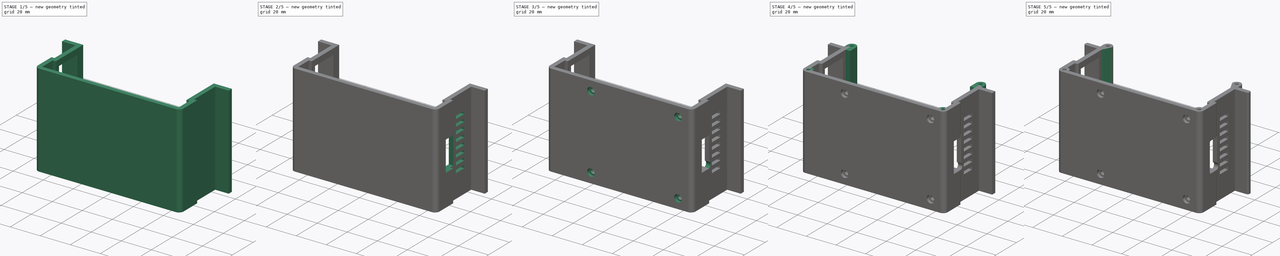
[diagram: build sequence overview — one tinted view per stage of 5, left to right]
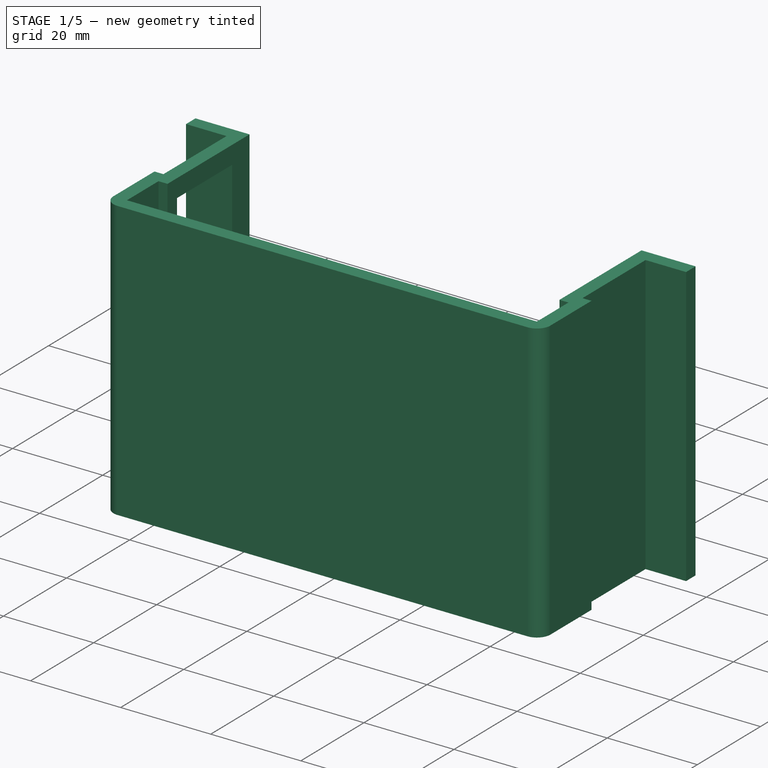
[diagram: stage 1 of 5 — iso view after this stage's code; geometry added in this stage tinted green]
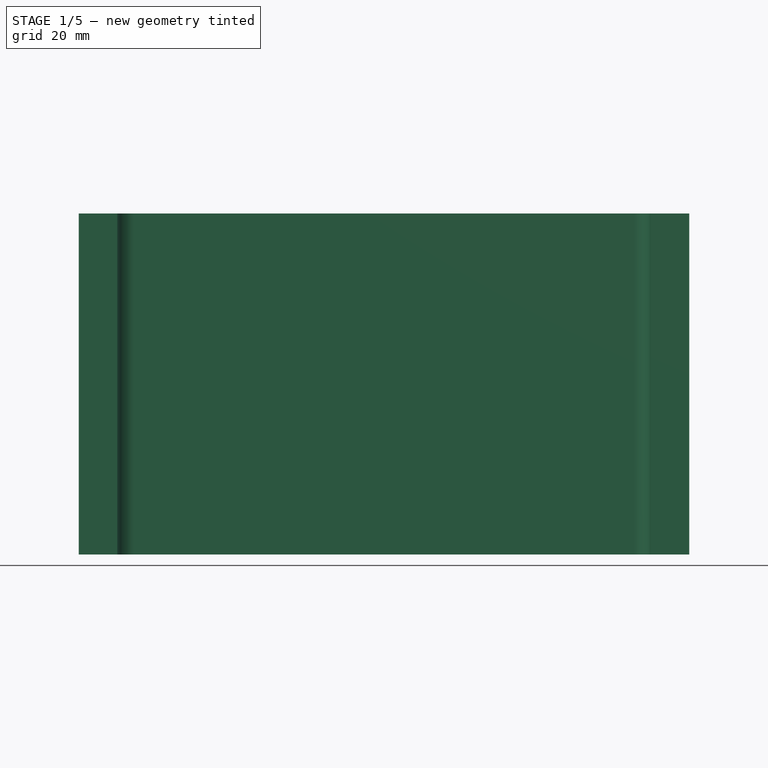
[diagram: stage 1 of 5 — front view after this stage's code; geometry added in this stage tinted green]
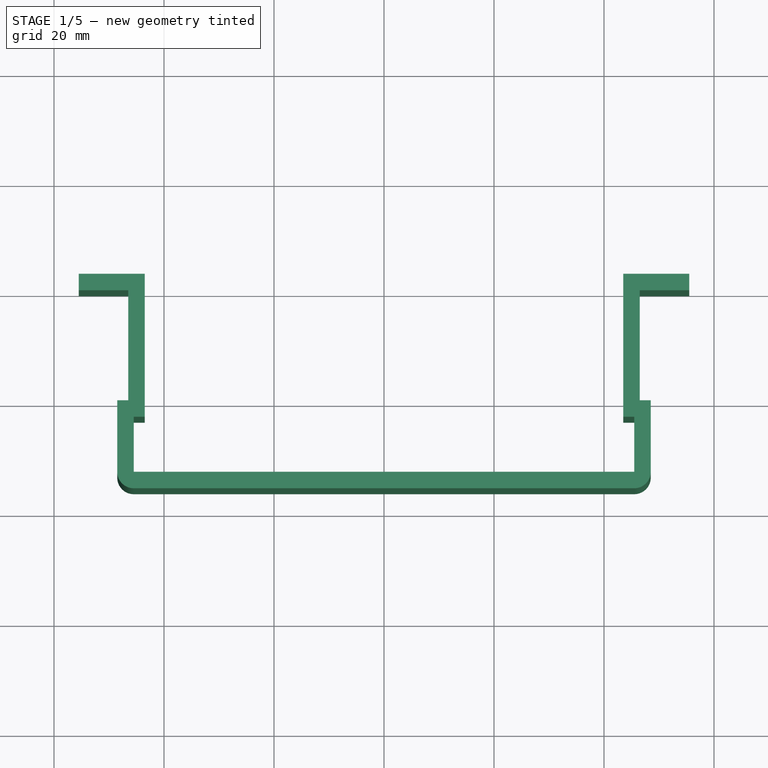
[diagram: stage 1 of 5 — top view after this stage's code; geometry added in this stage tinted green]
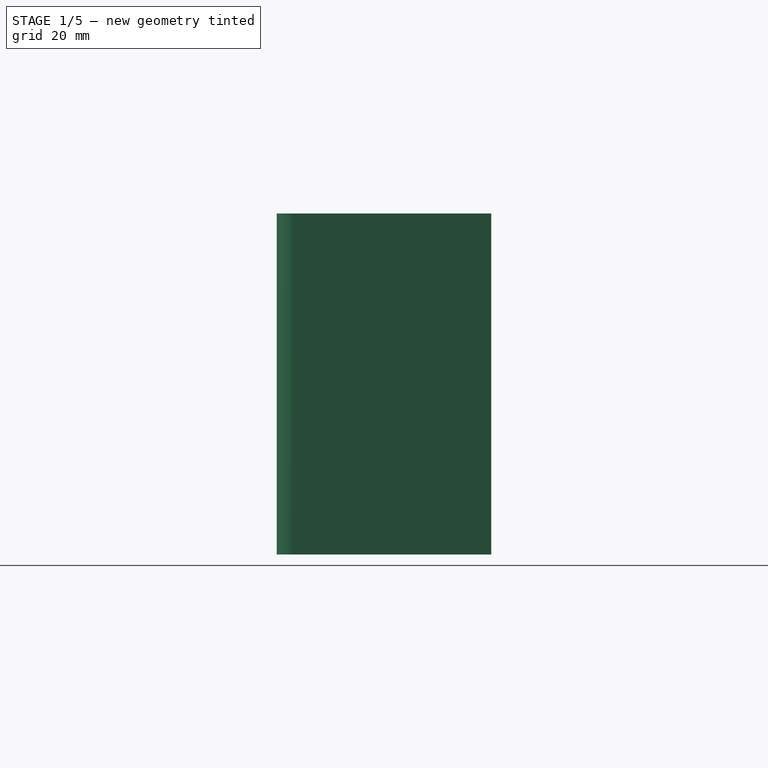
[diagram: stage 1 of 5 — right view after this stage's code; geometry added in this stage tinted green]
FCSTD DOCUMENT  (FreeCAD 1.0R39319 (Git))
Label: Pi5_Bagpack
License: All rights reserved
LicenseURL: https://en.wikipedia.org/wiki/All_rights_reserved
objects: Sketcher::SketchObject×11, PartDesign::Pocket×7, PartDesign::Fillet×6, PartDesign::Pad×3, PartDesign::Mirrored×1, PartDesign::LinearPattern×1, PartDesign::Hole×1, PartDesign::Body×1, App::Part×1
note: 78 computed .brp shape members not serialized (recipe doc carries the construction recipe); baked Part::Feature solids carry a one-line shape summary decoded from their .brp

FEATURE [Sketcher::SketchObject] Sketch
  ArcFitTolerance = 1e-06
  AttachmentSupport = -> [XY_Plane001]
  FullyConstrained = true
  MakeInternals = false
  MapMode = 5
  sketch-geometry (12):
    g0: LineSegment StartX=0 StartY=-36 StartZ=0 EndX=0 EndY=-33 EndZ=0
    g1: LineSegment StartX=43.5 StartY=3 StartZ=0 EndX=55.5 EndY=3 EndZ=0
    g2: LineSegment StartX=55.5 StartY=3 StartZ=0 EndX=55.5 EndY=0 EndZ=0
    g3: LineSegment StartX=55.5 StartY=0 StartZ=0 EndX=46.5 EndY=0 EndZ=0
    g4: LineSegment StartX=48.5 StartY=-36 StartZ=0 EndX=0 EndY=-36 EndZ=0
    g5: LineSegment StartX=43.5 StartY=3 StartZ=0 EndX=43.5 EndY=-23 EndZ=0
    g6: LineSegment StartX=43.5 StartY=-23 StartZ=0 EndX=45.5 EndY=-23 EndZ=0
    g7: LineSegment StartX=0 StartY=-33 StartZ=0 EndX=45.5 EndY=-33 EndZ=0
    g8: LineSegment StartX=45.5 StartY=-33 StartZ=0 EndX=45.5 EndY=-23 EndZ=0
    g9: LineSegment StartX=48.5 StartY=-36 StartZ=0 EndX=48.5 EndY=-20 EndZ=0
    g10: LineSegment StartX=48.5 StartY=-20 StartZ=0 EndX=46.5 EndY=-20 EndZ=0
    g11: LineSegment StartX=46.5 StartY=-20 StartZ=0 EndX=46.5 EndY=0 EndZ=0
  constraints (36):
    c: PointOnObject(g0,g-2)
    c: PointOnObject(g0,g-2)
    c: Horizontal(g1)
    c: Coincident(g1,g2)
    c: PointOnObject(g2,g-1)
    c: Coincident(g2,g3)
    c: PointOnObject(g3,g-1)
    c: Coincident(g4,g0)
    c: Horizontal(g4)
    c: Distance(g3,g1) = 3
    c: Vertical(g2)
    c: Distance(g2,g-2) = 55.5
    c: Coincident(g1,g5)
    c: Vertical(g5)
    c: Coincident(g5,g6)
    c: Horizontal(g6)
    c: Distance(g-2,g5) = 43.5
    c: Coincident(g0,g7)
    c: Horizontal(g7)
    c: Coincident(g7,g8)
    c: Coincident(g8,g6)
    c: Coincident(g4,g9)
    c: Vertical(g9)
    c: Coincident(g9,g10)
    c: Coincident(g10,g11)
    c: Coincident(g11,g3)
    c: Vertical(g8)
    c: Horizontal(g10)
    c: Vertical(g11)
    c: Distance(g4,g7) = 3
    c: Distance(g9,g8) = 3
    c: Distance(g11,g5) = 3
    c: Distance(g10,g6) = 3
    c: Distance(g6,g7) = 10
    c: Distance(g8,g-2) = 45.5
    c: Distance(g7,g3) = 33
FEATURE [PartDesign::Pad] Pad
  Direction = (0,0,1)
  Length = 62
  Length2 = 10
  Profile = -> Sketch
  ReferenceAxis = -> Sketch [N_Axis]
  Refine = true
  Suppressed = false
  Type = 0
FEATURE [PartDesign::Fillet] Fillet
  Base = -> Pad [Edge1]
  BaseFeature = -> Pad
  Radius = 3
  Refine = true
  SupportTransform = false
  Suppressed = false
  UseAllEdges = false
FEATURE [PartDesign::Mirrored] Mirrored
  BaseFeature = -> Fillet
  MirrorPlane = -> YZ_Plane001
  Refine = true
  Suppressed = false
  TransformMode = 1
FEATURE [Sketcher::SketchObject] Sketch001
  ArcFitTolerance = 1e-06
  AttachmentSupport = -> [Mirrored]
  ExternalGeometry = -> [Mirrored]
  FullyConstrained = true
  MakeInternals = false
  MapMode = 5
  Placement = pos=(-46.5,1.03e-14,-1.03e-14) rot=(0.57735,-0.57735,-0.57735;2.0944rad)
  sketch-geometry (15):
    g0: LineSegment StartX=2.5 StartY=24.1 StartZ=0 EndX=20 EndY=24.1 EndZ=0
    g1: LineSegment StartX=20 StartY=24.1 StartZ=0 EndX=20 EndY=40.1 EndZ=0
    g2: LineSegment StartX=20 StartY=40.1 StartZ=0 EndX=2.5 EndY=40.1 EndZ=0
    g3: LineSegment StartX=2.5 StartY=42 StartZ=0 EndX=20 EndY=42 EndZ=0
    g4: LineSegment StartX=20 StartY=42 StartZ=0 EndX=20 EndY=58 EndZ=0
    g5: LineSegment StartX=20 StartY=58 StartZ=0 EndX=2.5 EndY=58 EndZ=0
    g6: LineSegment StartX=5 StartY=21.95 StartZ=0 EndX=5 EndY=4.45 EndZ=0
    g7: LineSegment StartX=5 StartY=4.45 StartZ=0 EndX=20 EndY=4.45 EndZ=0
    g8: LineSegment StartX=20 StartY=4.45 StartZ=0 EndX=20 EndY=21.95 EndZ=0
    g9: LineSegment StartX=20 StartY=21.95 StartZ=0 EndX=5 EndY=21.95 EndZ=0
    g10: LineSegment [constr] StartX=20 StartY=50 StartZ=0 EndX=2.5 EndY=50 EndZ=0
    g11: LineSegment [constr] StartX=20 StartY=32.1 StartZ=0 EndX=2.5 EndY=32.1 EndZ=0
    g12: LineSegment [constr] StartX=20 StartY=13.2 StartZ=0 EndX=5 EndY=13.2 EndZ=0
    g13: LineSegment StartX=2.5 StartY=58 StartZ=0 EndX=2.5 EndY=42 EndZ=0
    g14: LineSegment StartX=2.5 StartY=40.1 StartZ=0 EndX=2.5 EndY=24.1 EndZ=0
  constraints (42):
    c: Coincident(g0,g1)
    c: Coincident(g1,g2)
    c: Horizontal(g0)
    c: Horizontal(g2)
    c: Vertical(g1)
    c: Coincident(g3,g4)
    c: Coincident(g4,g5)
    c: Horizontal(g3)
    c: Horizontal(g5)
    c: Vertical(g4)
    c: Coincident(g6,g7)
    c: Coincident(g7,g8)
    c: Coincident(g8,g9)
    c: Coincident(g9,g6)
    c: Vertical(g6)
    c: Vertical(g8)
    c: Horizontal(g7)
    c: Horizontal(g9)
    c: PointOnObject(g4,g-4)
    c: PointOnObject(g1,g-4)
    c: PointOnObject(g8,g-4)
    c: Symmetric(g4,g4,g10)
    c: Symmetric(g5,g3,g10)
    c: Symmetric(g1,g1,g11)
    c: Symmetric(g2,g0,g11)
    c: Symmetric(g8,g8,g12)
    c: Symmetric(g6,g6,g12)
    c: Distance(g-1,g10) = 50
    c: Distance(g-1,g11) = 32.1
    c: Distance(g-1,g12) = 13.2
    c: Distance(g9,g7) = 17.5
    c: Distance(g0,g2) = 16
    c: Distance(g5,g3) = 16
    c: Distance(g8,g6) = 15
    c: Coincident(g13,g5)
    c: Coincident(g13,g3)
    c: Vertical(g13)
    c: Coincident(g14,g2)
    c: Coincident(g14,g0)
    c: Vertical(g14)
    c: Distance(g4,g13) = 17.5
    c: Distance(g1,g14) = 17.5
FEATURE [Sketcher::SketchObject] Sketch002
  ArcFitTolerance = 1e-06
  AttachmentSupport = -> [Mirrored]
  ExternalGeometry = -> [Mirrored]
  FullyConstrained = true
  MakeInternals = false
  MapMode = 5
  Placement = pos=(46.5,0,0) rot=(0.57735,0.57735,0.57735;2.0944rad)
  sketch-geometry (6):
    g0: LineSegment StartX=-27 StartY=41 StartZ=0 EndX=-27 EndY=21 EndZ=0
    g1: LineSegment StartX=-27 StartY=21 StartZ=0 EndX=-17 EndY=21 EndZ=0
    g2: LineSegment StartX=-17 StartY=21 StartZ=0 EndX=-17 EndY=41 EndZ=0
    g3: LineSegment StartX=-17 StartY=41 StartZ=0 EndX=-27 EndY=41 EndZ=0
    g4: LineSegment [constr] StartX=-17 StartY=31 StartZ=0 EndX=-27 EndY=31 EndZ=0
    g5: LineSegment [constr] StartX=-22 StartY=41 StartZ=0 EndX=-22 EndY=21 EndZ=0
  constraints (15):
    c: Coincident(g0,g1)
    c: Coincident(g1,g2)
    c: Coincident(g2,g3)
    c: Coincident(g3,g0)
    c: Vertical(g0)
    c: Vertical(g2)
    c: Horizontal(g1)
    c: Distance(g1,g3) = 20
    c: Distance(g2,g0) = 10
    c: Symmetric(g2,g2,g4)
    c: Symmetric(g0,g0,g4)
    c: Symmetric(g-3,g-3,g4)
    c: Symmetric(g3,g3,g5)
    c: Symmetric(g1,g1,g5)
    c: Distance(g5,g-3) = 11
FEATURE [PartDesign::Pocket] Pocket
  BaseFeature = -> Mirrored
  Direction = (1,0,0)
  Length = 0
  Length2 = 5
  Profile = -> Sketch001
  ReferenceAxis = -> Sketch001 [N_Axis]
  Refine = true
  Suppressed = false
  Type = 3
  UpToFace = -> YZ_Plane001
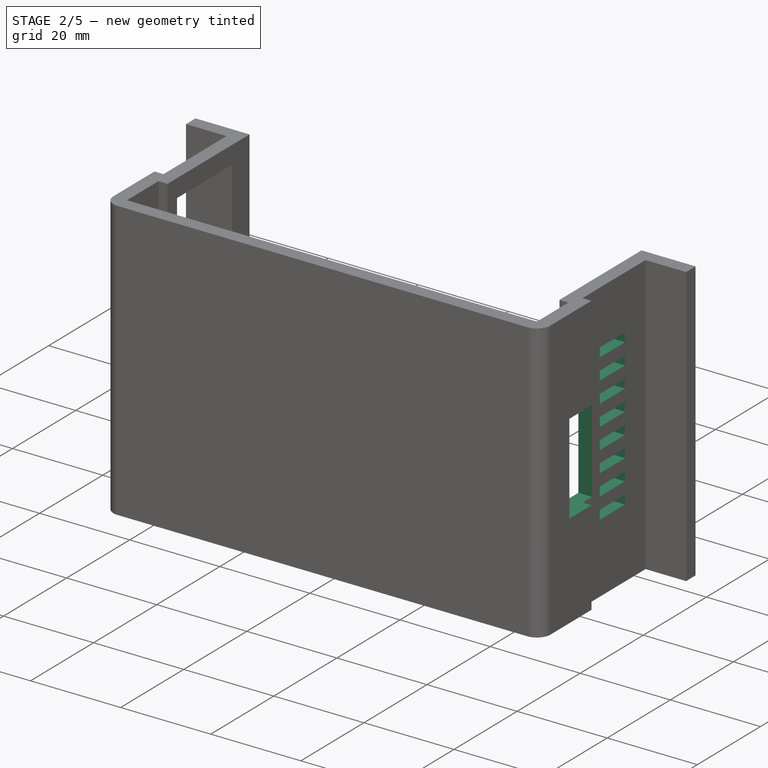
[diagram: stage 2 of 5 — iso view after this stage's code; geometry added in this stage tinted green]
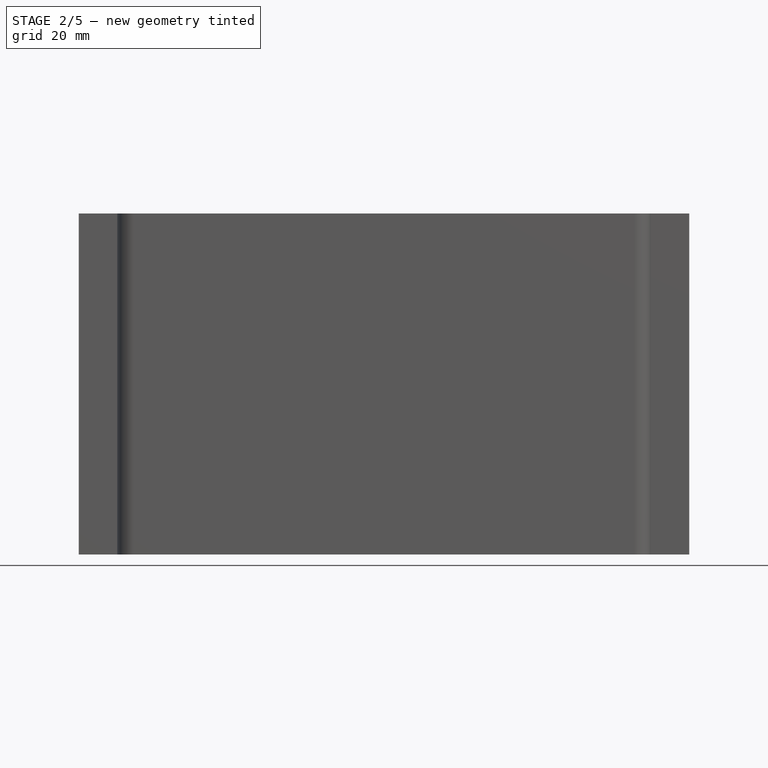
[diagram: stage 2 of 5 — front view after this stage's code; geometry added in this stage tinted green]
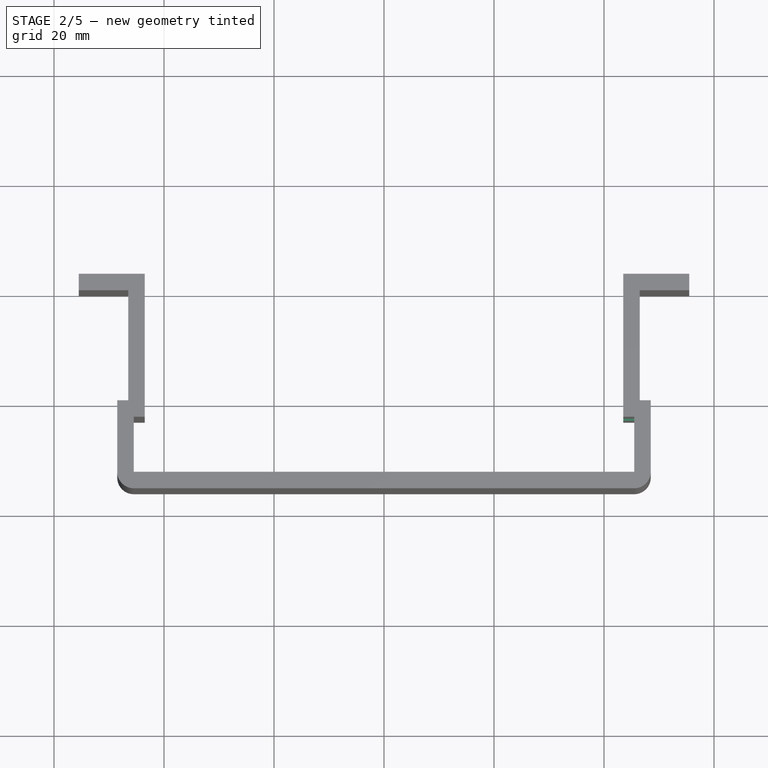
[diagram: stage 2 of 5 — top view after this stage's code; geometry added in this stage tinted green]
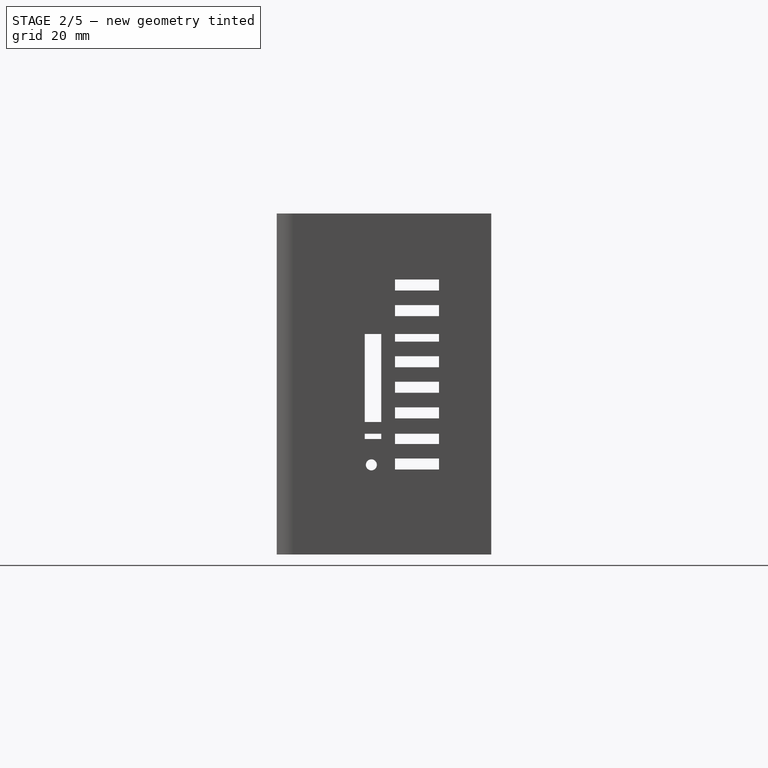
[diagram: stage 2 of 5 — right view after this stage's code; geometry added in this stage tinted green]
FEATURE [PartDesign::Pocket] Pocket001
  BaseFeature = -> Pocket
  Direction = (-1,0,0)
  Length = 10
  Length2 = 5
  Midplane = true
  Profile = -> Sketch002
  ReferenceAxis = -> Sketch002 [N_Axis]
  Refine = true
  Suppressed = false
  Type = 0
FEATURE [Sketcher::SketchObject] Sketch003
  ArcFitTolerance = 1e-06
  AttachmentSupport = -> [Pocket001]
  ExternalGeometry = -> [Pocket001]
  FullyConstrained = true
  MakeInternals = false
  MapMode = 5
  Placement = pos=(46.5,0,0) rot=(0.57735,0.57735,0.57735;2.0944rad)
  sketch-geometry (1):
    g0: Circle CenterX=-18.8 CenterY=16.3 CenterZ=0 NormalX=0 NormalY=0 NormalZ=1 AngleXU=0 Radius=1
  constraints (3):
    c: Diameter(g0) = 2
    c: Distance(g0,g-1) = 16.3
    c: Distance(g0,g-3) = 14.2
FEATURE [PartDesign::Pocket] Pocket002  label="LED"
  BaseFeature = -> Pocket001
  Direction = (-1,0,0)
  Length = 7
  Length2 = 5
  Midplane = true
  Profile = -> Sketch003
  ReferenceAxis = -> Sketch003 [N_Axis]
  Refine = true
  Suppressed = false
  Type = 0
FEATURE [Sketcher::SketchObject] Sketch004
  ArcFitTolerance = 1e-06
  AttachmentSupport = -> [Pocket002]
  ExternalGeometry = -> [Pocket002]
  FullyConstrained = true
  MakeInternals = false
  MapMode = 5
  Placement = pos=(46.5,0,0) rot=(0.57735,0.57735,0.57735;2.0944rad)
  sketch-geometry (4):
    g0: LineSegment StartX=-14.5 StartY=48 StartZ=0 EndX=-14.5 EndY=50 EndZ=0
    g1: LineSegment StartX=-14.5 StartY=50 StartZ=0 EndX=-6.5 EndY=50 EndZ=0
    g2: LineSegment StartX=-6.5 StartY=50 StartZ=0 EndX=-6.5 EndY=48 EndZ=0
    g3: LineSegment StartX=-6.5 StartY=48 StartZ=0 EndX=-14.5 EndY=48 EndZ=0
  constraints (12):
    c: Coincident(g0,g1)
    c: Coincident(g1,g2)
    c: Coincident(g2,g3)
    c: Coincident(g3,g0)
    c: Vertical(g0)
    c: Vertical(g2)
    c: Horizontal(g1)
    c: Horizontal(g3)
    c: Distance(g-3,g3) = 14
    c: Distance(g3,g1) = 2
    c: Distance(g2,g0) = 8
    c: Distance(g0,g-4) = 18.5
FEATURE [PartDesign::Pocket] Pocket003  label="Vent"
  BaseFeature = -> Pocket002
  Direction = (-1,0,0)
  Length = 0
  Length2 = 5
  Profile = -> Sketch004
  ReferenceAxis = -> Sketch004 [N_Axis]
  Refine = true
  Suppressed = false
  Type = 3
  UpToFace = -> Pocket002 [Face21]
FEATURE [PartDesign::LinearPattern] LinearPattern
  BaseFeature = -> Pocket003
  Direction = -> Z_Axis001
  Length = 32.55
  Mode = 1
  Occurrences = 8
  Offset = 4.65
  Originals = -> [Pocket003]
  Refine = true
  Reversed = true
  Suppressed = false
  TransformMode = 0
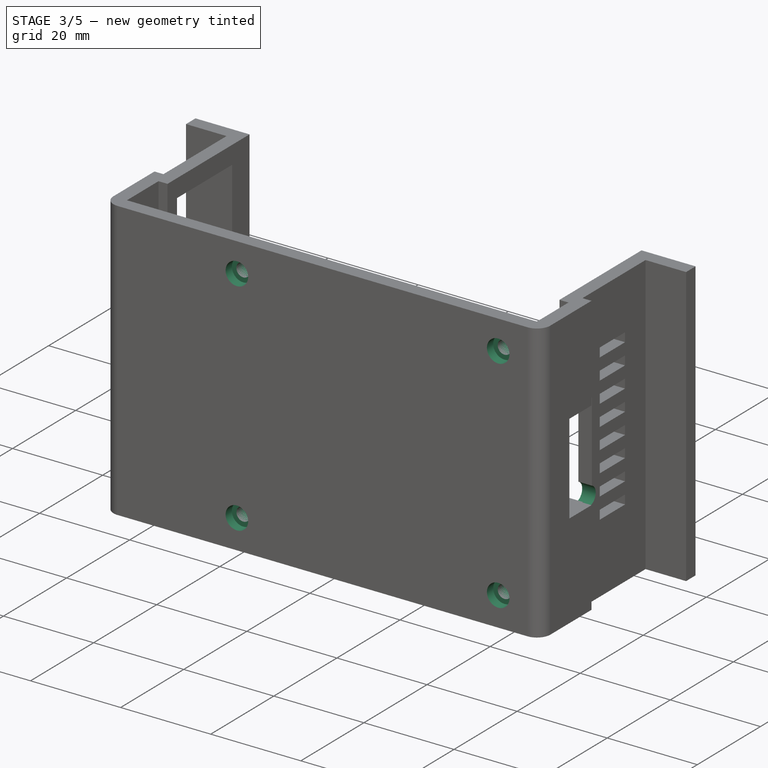
[diagram: stage 3 of 5 — iso view after this stage's code; geometry added in this stage tinted green]
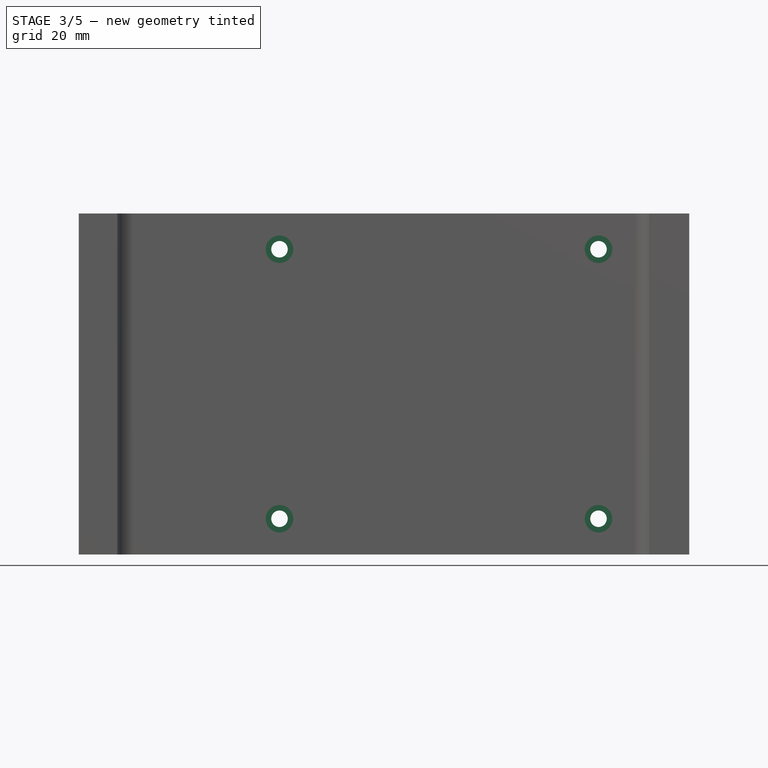
[diagram: stage 3 of 5 — front view after this stage's code; geometry added in this stage tinted green]
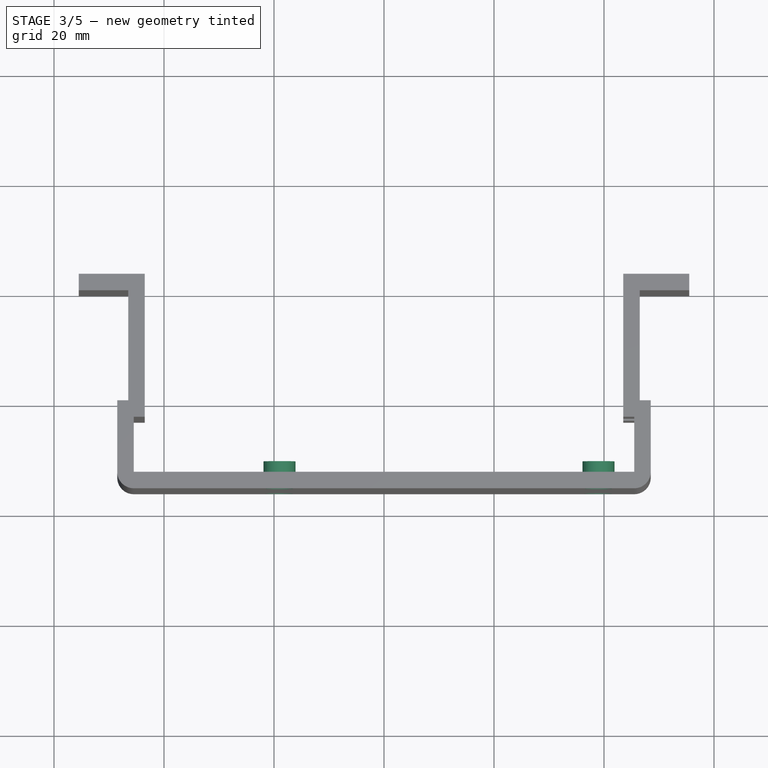
[diagram: stage 3 of 5 — top view after this stage's code; geometry added in this stage tinted green]
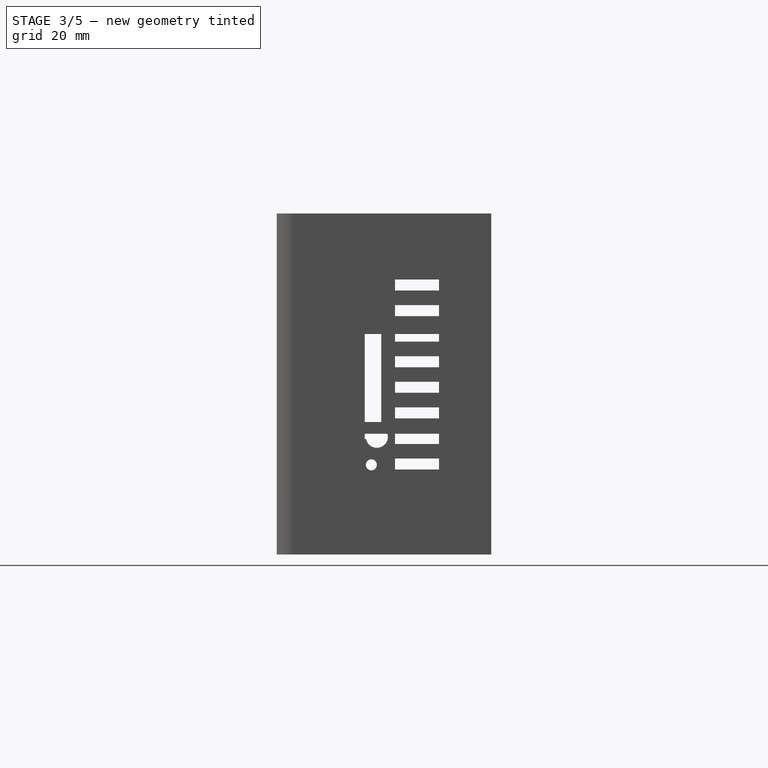
[diagram: stage 3 of 5 — right view after this stage's code; geometry added in this stage tinted green]
FEATURE [Sketcher::SketchObject] Sketch005
  ArcFitTolerance = 1e-06
  AttachmentSupport = -> [LinearPattern]
  ExternalGeometry = -> [LinearPattern]
  FullyConstrained = true
  MakeInternals = false
  MapMode = 5
  Placement = pos=(0,-33,0) rot=(0,0.707107,0.707107;3.14159rad)
  sketch-geometry (9):
    g0: LineSegment [constr] StartX=-39 StartY=55.5 StartZ=0 EndX=-39 EndY=6.5 EndZ=0
    g1: LineSegment [constr] StartX=-39 StartY=6.5 StartZ=0 EndX=19 EndY=6.5 EndZ=0
    g2: LineSegment [constr] StartX=19 StartY=6.5 StartZ=0 EndX=19 EndY=55.5 EndZ=0
    g3: LineSegment [constr] StartX=19 StartY=55.5 StartZ=0 EndX=-39 EndY=55.5 EndZ=0
    g4: Circle CenterX=19 CenterY=55.5 CenterZ=0 NormalX=0 NormalY=0 NormalZ=1 AngleXU=0 Radius=2.9
    g5: Circle CenterX=-39 CenterY=55.5 CenterZ=0 NormalX=0 NormalY=0 NormalZ=1 AngleXU=0 Radius=2.9
    g6: Circle CenterX=-39 CenterY=6.5 CenterZ=0 NormalX=0 NormalY=0 NormalZ=1 AngleXU=0 Radius=2.9
    g7: Circle CenterX=19 CenterY=6.5 CenterZ=0 NormalX=0 NormalY=0 NormalZ=1 AngleXU=0 Radius=2.9
    g8: LineSegment [constr] StartX=-39 StartY=31 StartZ=0 EndX=19 EndY=31 EndZ=0
  constraints (23):
    c: Coincident(g0,g1)
    c: Coincident(g1,g2)
    c: Coincident(g2,g3)
    c: Coincident(g3,g0)
    c: Vertical(g0)
    c: Vertical(g2)
    c: Horizontal(g1)
    c: Horizontal(g3)
    c: Coincident(g4,g2)
    c: Coincident(g5,g0)
    c: Coincident(g6,g0)
    c: Coincident(g7,g1)
    c: Diameter(g4) = 5.8
    c: Diameter(g5) = 5.8
    c: Diameter(g7) = 5.8
    c: Diameter(g6) = 5.8
    c: DistanceX(g3,g3) = 58
    c: Distance(g1,g3) = 49
    c: Symmetric(g0,g0,g8)
    c: Symmetric(g2,g2,g8)
    c: Distance(g-1,g1) = 6.5
    c: DistanceY(g-4,g-4) = 62
    c: Distance(g-4,g0) = 4.5
FEATURE [PartDesign::Pad] Pad001
  BaseFeature = -> LinearPattern
  Direction = (0,1,-2e-16)
  Length = 2
  Length2 = 10
  Profile = -> Sketch005
  ReferenceAxis = -> Sketch005 [N_Axis]
  Refine = true
  Suppressed = false
  Type = 0
FEATURE [Sketcher::SketchObject] Sketch006
  ArcFitTolerance = 1e-06
  AttachmentSupport = -> [Pad001]
  ExternalGeometry = -> [Pad001]
  FullyConstrained = true
  MakeInternals = false
  MapMode = 5
  Placement = pos=(0,-36,0) rot=(1,0,0;1.5708rad)
  sketch-geometry (4):
    g0: Circle CenterX=-19 CenterY=55.5 CenterZ=0 NormalX=0 NormalY=0 NormalZ=1 AngleXU=0 Radius=1.5
    g1: Circle CenterX=39 CenterY=55.5 CenterZ=0 NormalX=0 NormalY=0 NormalZ=1 AngleXU=0 Radius=1.5
    g2: Circle CenterX=39 CenterY=6.5 CenterZ=0 NormalX=0 NormalY=0 NormalZ=1 AngleXU=0 Radius=1.5
    g3: Circle CenterX=-19 CenterY=6.5 CenterZ=0 NormalX=0 NormalY=0 NormalZ=1 AngleXU=0 Radius=1.5
  constraints (8):
    c: Coincident(g0,g-3)
    c: Coincident(g1,g-5)
    c: Coincident(g2,g-6)
    c: Coincident(g3,g-4)
    c: Diameter(g0) = 3
    c: Diameter(g1) = 3
    c: Diameter(g3) = 3
    c: Diameter(g2) = 3
FEATURE [PartDesign::Hole] Hole
  BaseFeature = -> Pad001
  CustomThreadClearance = 0
  Depth = 20
  DepthType = 0
  Diameter = 3
  DrillForDepth = false
  DrillPoint = 1
  DrillPointAngle = 118
  HoleCutCountersinkAngle = 90
  HoleCutCustomValues = false
  HoleCutDepth = 2
  HoleCutDiameter = 5
  HoleCutType = 1
  ModelThread = false
  Profile = -> Sketch006
  Refine = true
  Suppressed = false
  Tapered = false
  TaperedAngle = 90
  ThreadClass = 0
  ThreadDepth = 20
  ThreadDepthType = 0
  ThreadDirection = 0
  ThreadFit = 0
  ThreadSize = 0
  ThreadType = 0
  Threaded = false
  UseCustomThreadClearance = false
FEATURE [Sketcher::SketchObject] Sketch007
  ArcFitTolerance = 1e-06
  AttachmentSupport = -> [Pocket002]
  ExternalGeometry = -> [Pocket002]
  FullyConstrained = true
  MakeInternals = false
  MapMode = 5
  Placement = pos=(46.5,0,0) rot=(0.57735,0.57735,0.57735;2.0944rad)
  sketch-geometry (1):
    g0: Circle CenterX=-17.8 CenterY=21.4 CenterZ=0 NormalX=0 NormalY=0 NormalZ=1 AngleXU=0 Radius=2
  constraints (3):
    c: Distance(g0,g-1) = 21.4
    c: Distance(g0,g-3) = 15.2
    c: Diameter(g0) = 4
FEATURE [PartDesign::Pocket] Pocket004
  BaseFeature = -> Hole
  Direction = (-1,0,0)
  Length = 10
  Length2 = 5
  Midplane = true
  Profile = -> Sketch007
  ReferenceAxis = -> Sketch007 [N_Axis]
  Refine = true
  Suppressed = false
  Type = 0
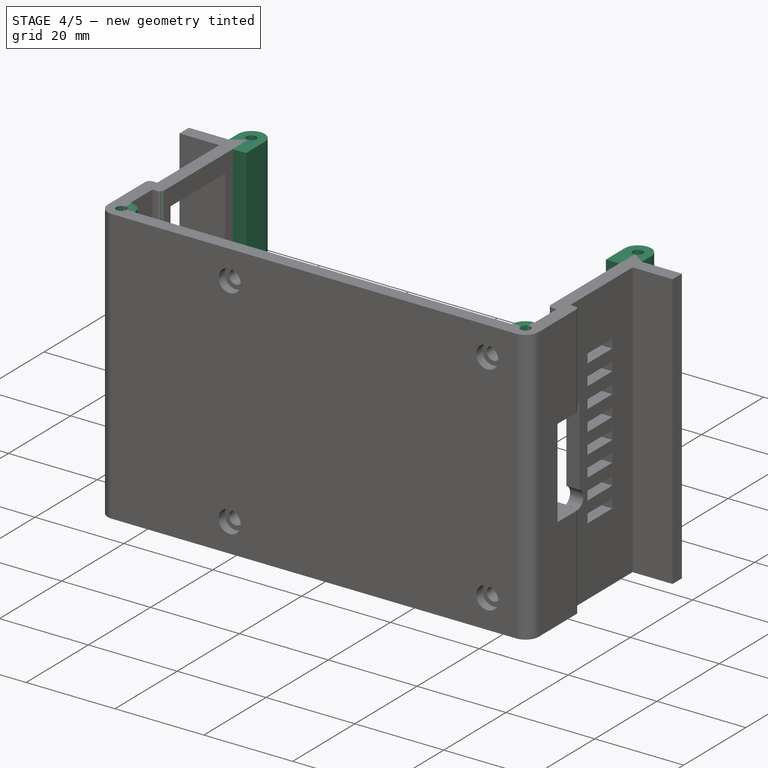
[diagram: stage 4 of 5 — iso view after this stage's code; geometry added in this stage tinted green]
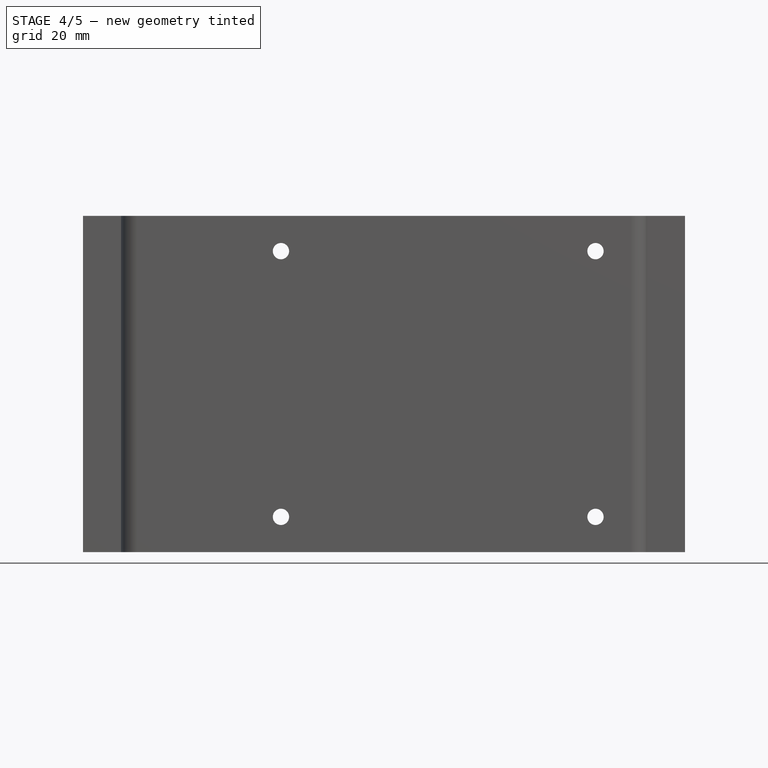
[diagram: stage 4 of 5 — front view after this stage's code; geometry added in this stage tinted green]
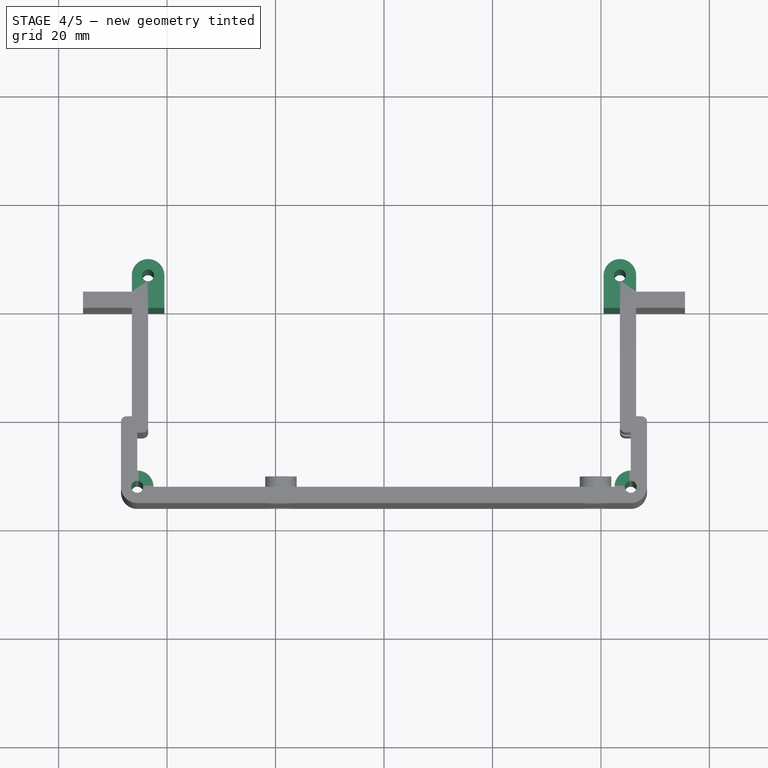
[diagram: stage 4 of 5 — top view after this stage's code; geometry added in this stage tinted green]
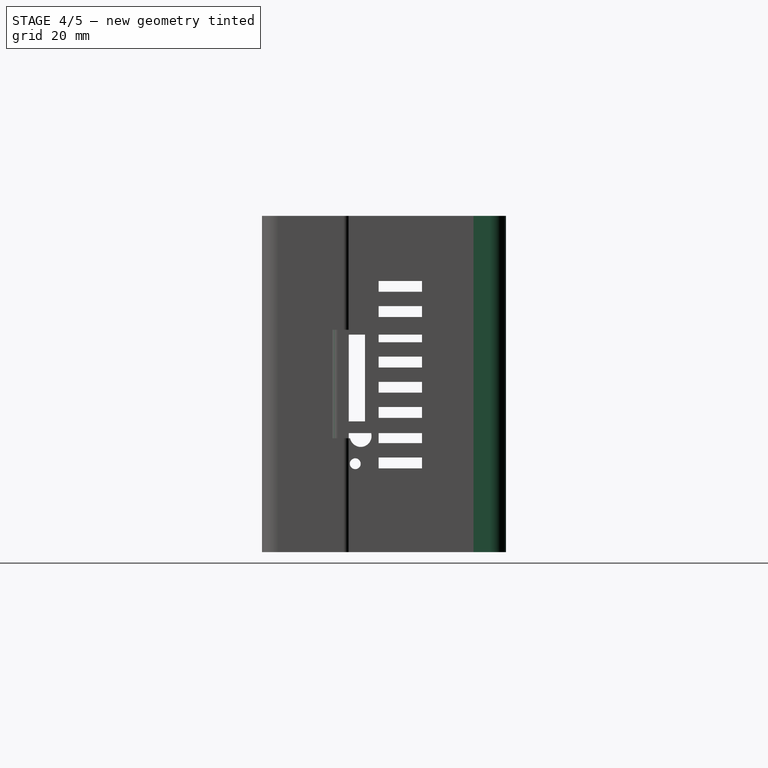
[diagram: stage 4 of 5 — right view after this stage's code; geometry added in this stage tinted green]
FEATURE [Sketcher::SketchObject] Sketch008
  ArcFitTolerance = 1e-06
  AttachmentSupport = -> [Pocket004]
  ExternalGeometry = -> [Pocket004]
  FullyConstrained = true
  MakeInternals = false
  MapMode = 5
  Placement = pos=(0,0,62) rot=(0,0,1;0rad)
  sketch-geometry (14):
    g0: Circle CenterX=-45.5 CenterY=-33 CenterZ=0 NormalX=0 NormalY=0 NormalZ=1 AngleXU=0 Radius=3
    g1: Circle CenterX=45.5 CenterY=-33 CenterZ=0 NormalX=0 NormalY=0 NormalZ=1 AngleXU=0 Radius=3
    g2: LineSegment StartX=43.5 StartY=0 StartZ=0 EndX=40.5 EndY=0 EndZ=0
    g3: LineSegment StartX=40.5 StartY=0 StartZ=0 EndX=40.5 EndY=6 EndZ=0
    g4: ArcOfCircle CenterX=43.5 CenterY=6 CenterZ=0 NormalX=0 NormalY=0 NormalZ=1 AngleXU=0 Radius=3 StartAngle=2e-16 EndAngle=3.14159
    g5: LineSegment StartX=46.5 StartY=6 StartZ=0 EndX=46.5 EndY=3 EndZ=0
    g6: LineSegment StartX=46.5 StartY=3 StartZ=0 EndX=43.5 EndY=3 EndZ=0
    g7: LineSegment StartX=43.5 StartY=3 StartZ=0 EndX=43.5 EndY=0 EndZ=0
    g8: LineSegment StartX=-43.5 StartY=3 StartZ=0 EndX=-46.5 EndY=3 EndZ=0
    g9: LineSegment StartX=-46.5 StartY=3 StartZ=0 EndX=-46.5 EndY=6 EndZ=0
    g10: ArcOfCircle CenterX=-43.5 CenterY=6 CenterZ=0 NormalX=0 NormalY=0 NormalZ=1 AngleXU=0 Radius=3 StartAngle=0 EndAngle=3.14159
    g11: LineSegment StartX=-40.5 StartY=6 StartZ=0 EndX=-40.5 EndY=0 EndZ=0
    g12: LineSegment StartX=-40.5 StartY=0 StartZ=0 EndX=-43.5 EndY=0 EndZ=0
    g13: LineSegment StartX=-43.5 StartY=0 StartZ=0 EndX=-43.5 EndY=3 EndZ=0
  constraints (37):
    c: Diameter(g0) = 6
    c: Diameter(g1) = 6
    c: Coincident(g0,g-4)
    c: Coincident(g1,g-3)
    c: PointOnObject(g2,g-1)
    c: PointOnObject(g2,g-1)
    c: Coincident(g2,g3)
    c: Vertical(g3)
    c: Tangent(g3,g4) = 1.5708
    c: Tangent(g4,g5) = 1.5708
    c: Coincident(g5,g6)
    c: Horizontal(g6)
    c: Coincident(g6,g7)
    c: Coincident(g7,g2)
    c: Vertical(g7)
    c: Radius(g4) = 3
    c: Vertical(g5)
    c: PointOnObject(g5,g-5)
    c: PointOnObject(g2,g-6)
    c: PointOnObject(g5,g-7)
    c: DistanceY(g5,g5) = 3
    c: Coincident(g-9,g8)
    c: PointOnObject(g8,g-9)
    c: Coincident(g8,g9)
    c: Vertical(g9)
    c: Tangent(g9,g10) = 1.5708
    c: Tangent(g10,g11) = 1.5708
    c: Coincident(g11,g12)
    c: PointOnObject(g12,g-8)
    c: Horizontal(g12)
    c: Coincident(g12,g13)
    c: Coincident(g13,g8)
    c: Vertical(g11)
    c: Radius(g10) = 3
    c: PointOnObject(g8,g-10)
    c: Distance(g9,g9) = 3
    c: PointOnObject(g12,g-1)
FEATURE [PartDesign::Pad] Pad002
  BaseFeature = -> Pocket004
  Direction = (0,0,1)
  Length = 10
  Length2 = 10
  Profile = -> Sketch008
  ReferenceAxis = -> Sketch008 [N_Axis]
  Refine = true
  Suppressed = false
  Type = 3
  UpToFace = -> Pocket004 [Face2]
FEATURE [PartDesign::Fillet] Fillet001
  Base = -> Pad002 [Edge212,Edge17,Edge13]
  BaseFeature = -> Pad002
  Radius = 1
  Refine = true
  SupportTransform = false
  Suppressed = false
  UseAllEdges = false
FEATURE [PartDesign::Fillet] Fillet002
  Base = -> Fillet001 [Edge201,Edge197,Edge175]
  BaseFeature = -> Fillet001
  Radius = 1
  Refine = true
  SupportTransform = false
  Suppressed = false
  UseAllEdges = false
FEATURE [Sketcher::SketchObject] Sketch009
  ArcFitTolerance = 1e-06
  AttachmentSupport = -> [Fillet002]
  ExternalGeometry = -> [Fillet002]
  FullyConstrained = true
  MakeInternals = false
  MapMode = 5
  Placement = pos=(0,0,62) rot=(0,0,1;0rad)
  sketch-geometry (4):
    g0: Circle CenterX=-45.5 CenterY=-33 CenterZ=0 NormalX=0 NormalY=0 NormalZ=1 AngleXU=0 Radius=1.1
    g1: Circle CenterX=-43.5 CenterY=6 CenterZ=0 NormalX=0 NormalY=0 NormalZ=1 AngleXU=0 Radius=1.1
    g2: Circle CenterX=43.5 CenterY=6 CenterZ=0 NormalX=0 NormalY=0 NormalZ=1 AngleXU=0 Radius=1.1
    g3: Circle CenterX=45.5 CenterY=-33 CenterZ=0 NormalX=0 NormalY=0 NormalZ=1 AngleXU=0 Radius=1.1
  constraints (8):
    c: Coincident(g0,g-6)
    c: Coincident(g1,g-5)
    c: Coincident(g2,g-4)
    c: Coincident(g3,g-3)
    c: Diameter(g3) = 2.2
    c: Diameter(g2) = 2.2
    c: Diameter(g1) = 2.2
    c: Diameter(g0) = 2.2
FEATURE [PartDesign::Pocket] Pocket005
  BaseFeature = -> Fillet002
  Direction = (0,0,-1)
  Length = 5
  Length2 = 5
  Profile = -> Sketch009
  ReferenceAxis = -> Sketch009 [N_Axis]
  Refine = true
  Suppressed = false
  Type = 1
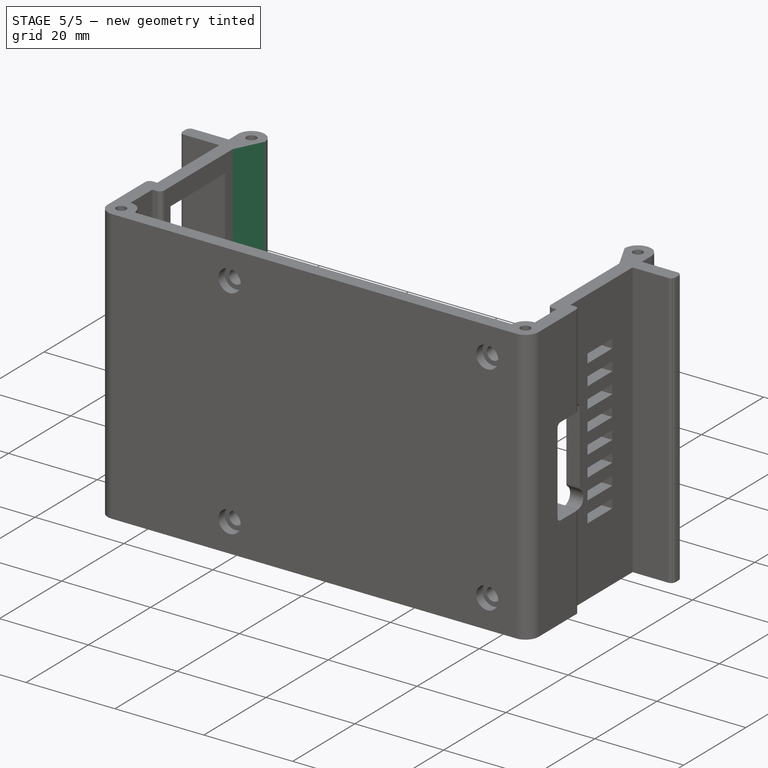
[diagram: stage 5 of 5 — iso view after this stage's code; geometry added in this stage tinted green]
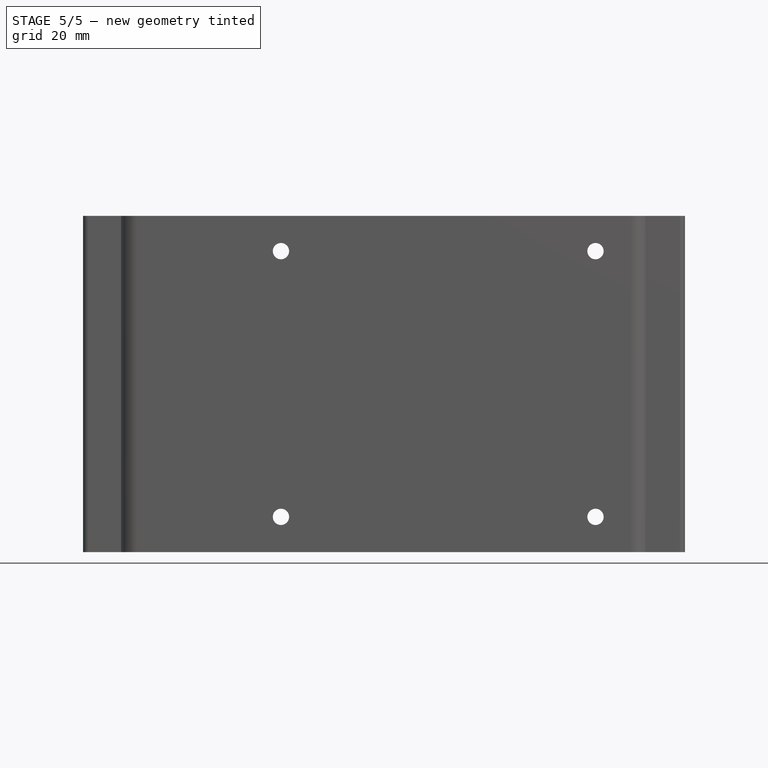
[diagram: stage 5 of 5 — front view after this stage's code; geometry added in this stage tinted green]
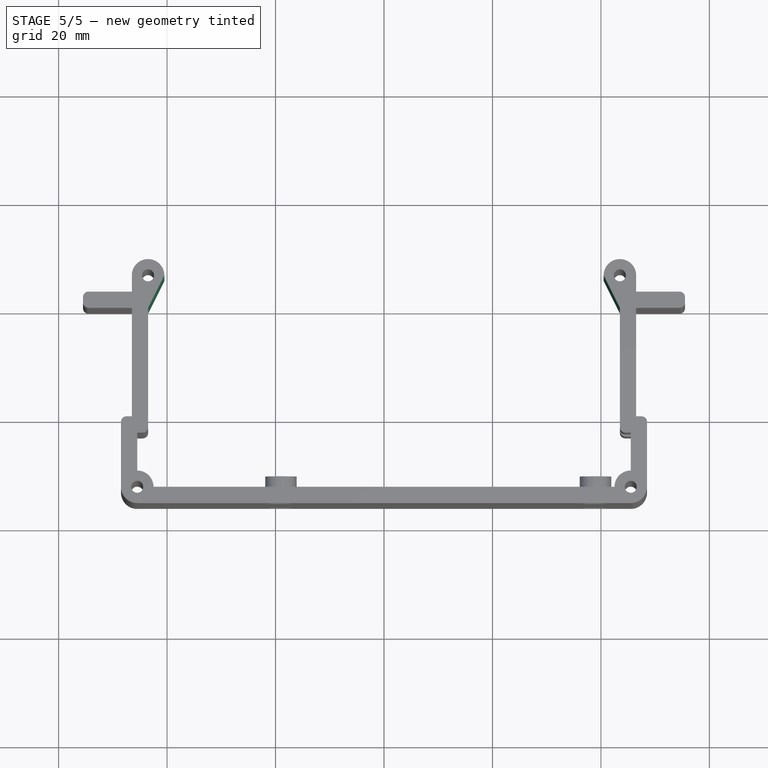
[diagram: stage 5 of 5 — top view after this stage's code; geometry added in this stage tinted green]
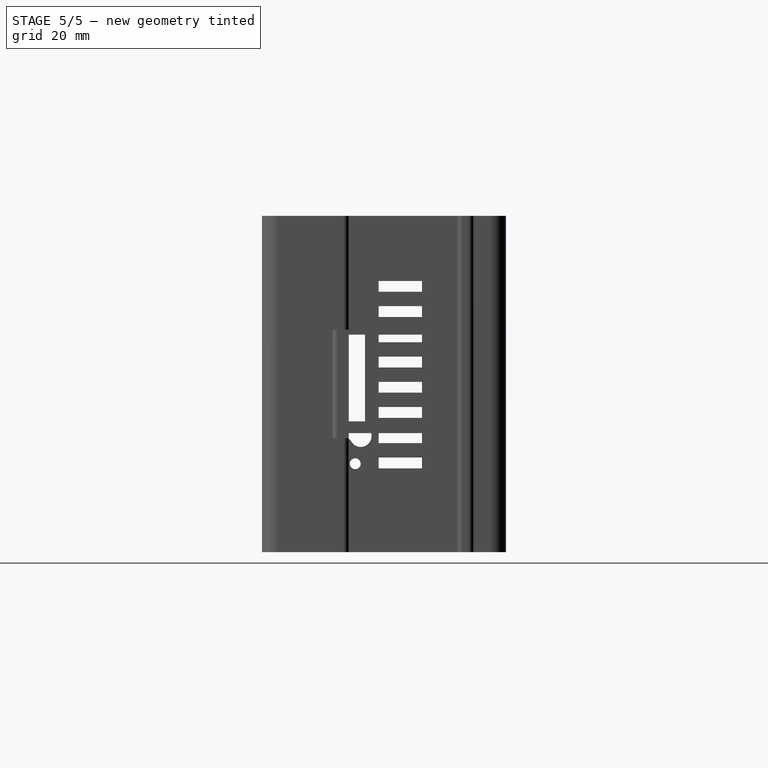
[diagram: stage 5 of 5 — right view after this stage's code; geometry added in this stage tinted green]
FEATURE [Sketcher::SketchObject] Sketch010
  ArcFitTolerance = 1e-06
  AttachmentSupport = -> [Pocket005]
  ExternalGeometry = -> [Pocket005]
  FullyConstrained = true
  MakeInternals = false
  MapMode = 5
  Placement = pos=(0,0,62) rot=(0,0,1;0rad)
  sketch-geometry (6):
    g0: LineSegment StartX=43.5 StartY=0 StartZ=0 EndX=40.5 EndY=0 EndZ=0
    g1: LineSegment StartX=40.5 StartY=0 StartZ=0 EndX=40.5 EndY=6 EndZ=0
    g2: LineSegment StartX=40.5 StartY=6 StartZ=0 EndX=43.5 EndY=0 EndZ=0
    g3: LineSegment StartX=-40.5 StartY=0 StartZ=0 EndX=-43.5 EndY=0 EndZ=0
    g4: LineSegment StartX=-43.5 StartY=0 StartZ=0 EndX=-40.5 EndY=6 EndZ=0
    g5: LineSegment StartX=-40.5 StartY=6 StartZ=0 EndX=-40.5 EndY=0 EndZ=0
  constraints (12):
    c: Coincident(g-8,g0)
    c: Coincident(g0,g-7)
    c: Coincident(g0,g1)
    c: Coincident(g1,g-6)
    c: Coincident(g1,g2)
    c: Coincident(g2,g0)
    c: Coincident(g-5,g3)
    c: Coincident(g3,g-4)
    c: Coincident(g3,g4)
    c: Coincident(g4,g-5)
    c: Coincident(g4,g5)
    c: Coincident(g5,g3)
FEATURE [PartDesign::Pocket] Pocket006
  BaseFeature = -> Pocket005
  Direction = (0,0,-1)
  Length = 5
  Length2 = 5
  Profile = -> Sketch010
  ReferenceAxis = -> Sketch010 [N_Axis]
  Refine = true
  Suppressed = false
  Type = 1
FEATURE [PartDesign::Fillet] Fillet003
  Base = -> Pocket006 [Edge142,Edge144,Edge48,Edge46]
  BaseFeature = -> Pocket006
  Radius = 1
  Refine = true
  SupportTransform = false
  Suppressed = false
  UseAllEdges = false
FEATURE [PartDesign::Fillet] Fillet004
  Base = -> Fillet003 [Edge279,Edge278,Edge281]
  BaseFeature = -> Fillet003
  Radius = 1
  Refine = true
  SupportTransform = false
  Suppressed = false
  UseAllEdges = false
FEATURE [PartDesign::Fillet] Fillet005
  Base = -> Fillet004 [Edge164,Edge18]
  BaseFeature = -> Fillet004
  Radius = 1
  Refine = true
  SupportTransform = false
  Suppressed = false
  UseAllEdges = false
FEATURE [PartDesign::Body] Body
  AllowCompound = false
  Group = -> [Sketch,Pad,Fillet,Mirrored,Sketch001,Sketch002,Pocket,Pocket001,Sketch003,Pocket002,Sketch004,Pocket003,LinearPattern,Sketch005,Pad001,Sketch006,Hole,Sketch007,Pocket004,Sketch008,Pad002,Fillet001,Fillet002,Sketch009,Pocket005,Sketch010,Pocket006,Fillet003,Fillet004,Fillet005]
  Origin = -> Origin001
  Tip = -> Fillet005
FEATURE [App::Part] Part  label="Pi5_Bagpack"
  Group = -> [Body]
  Origin = -> Origin
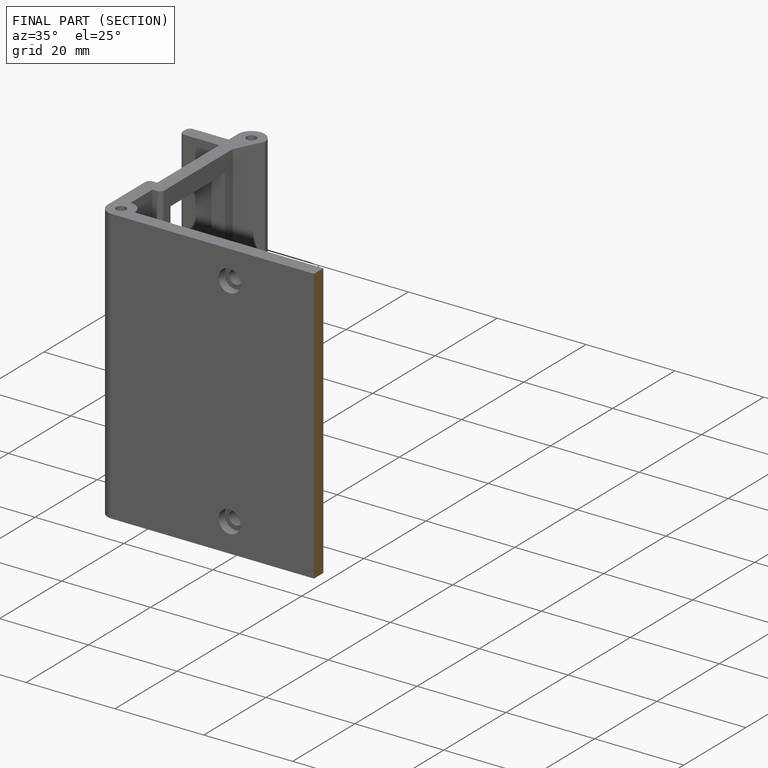
[diagram: finished part — half-section view (interior)]
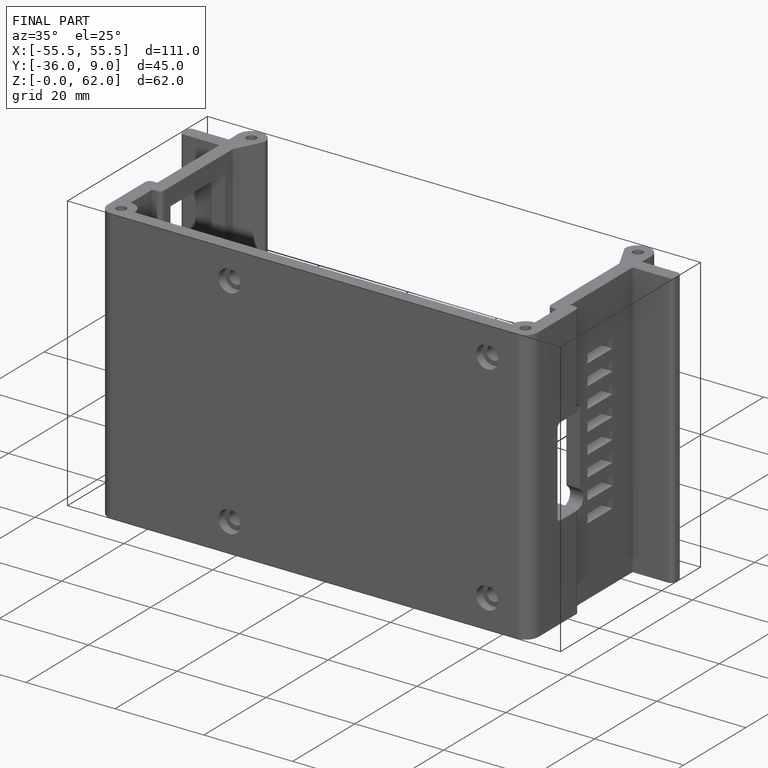
[diagram: finished part — iso view with bounding-box wireframe]
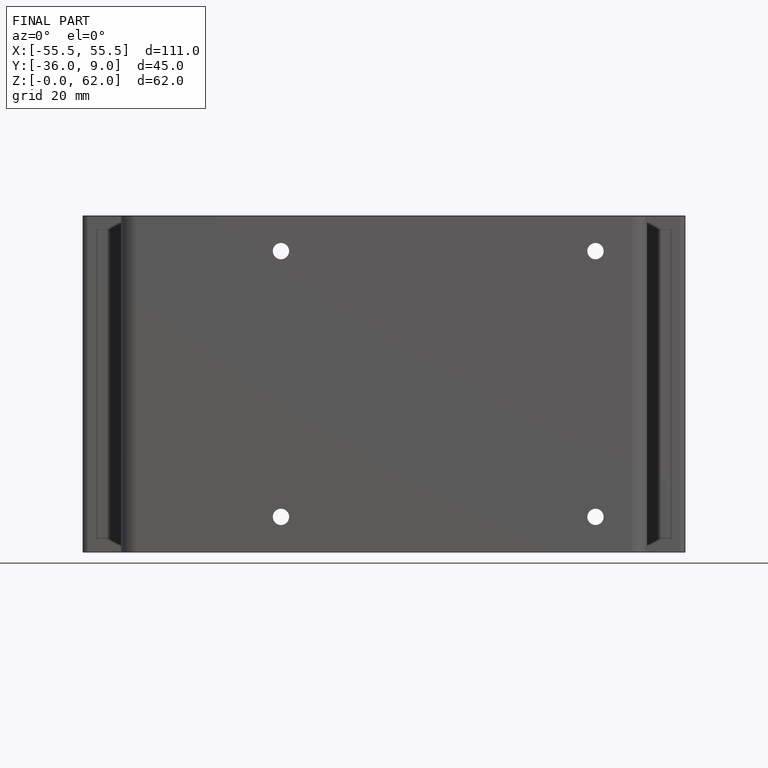
[diagram: finished part — front view with bounding-box wireframe]
